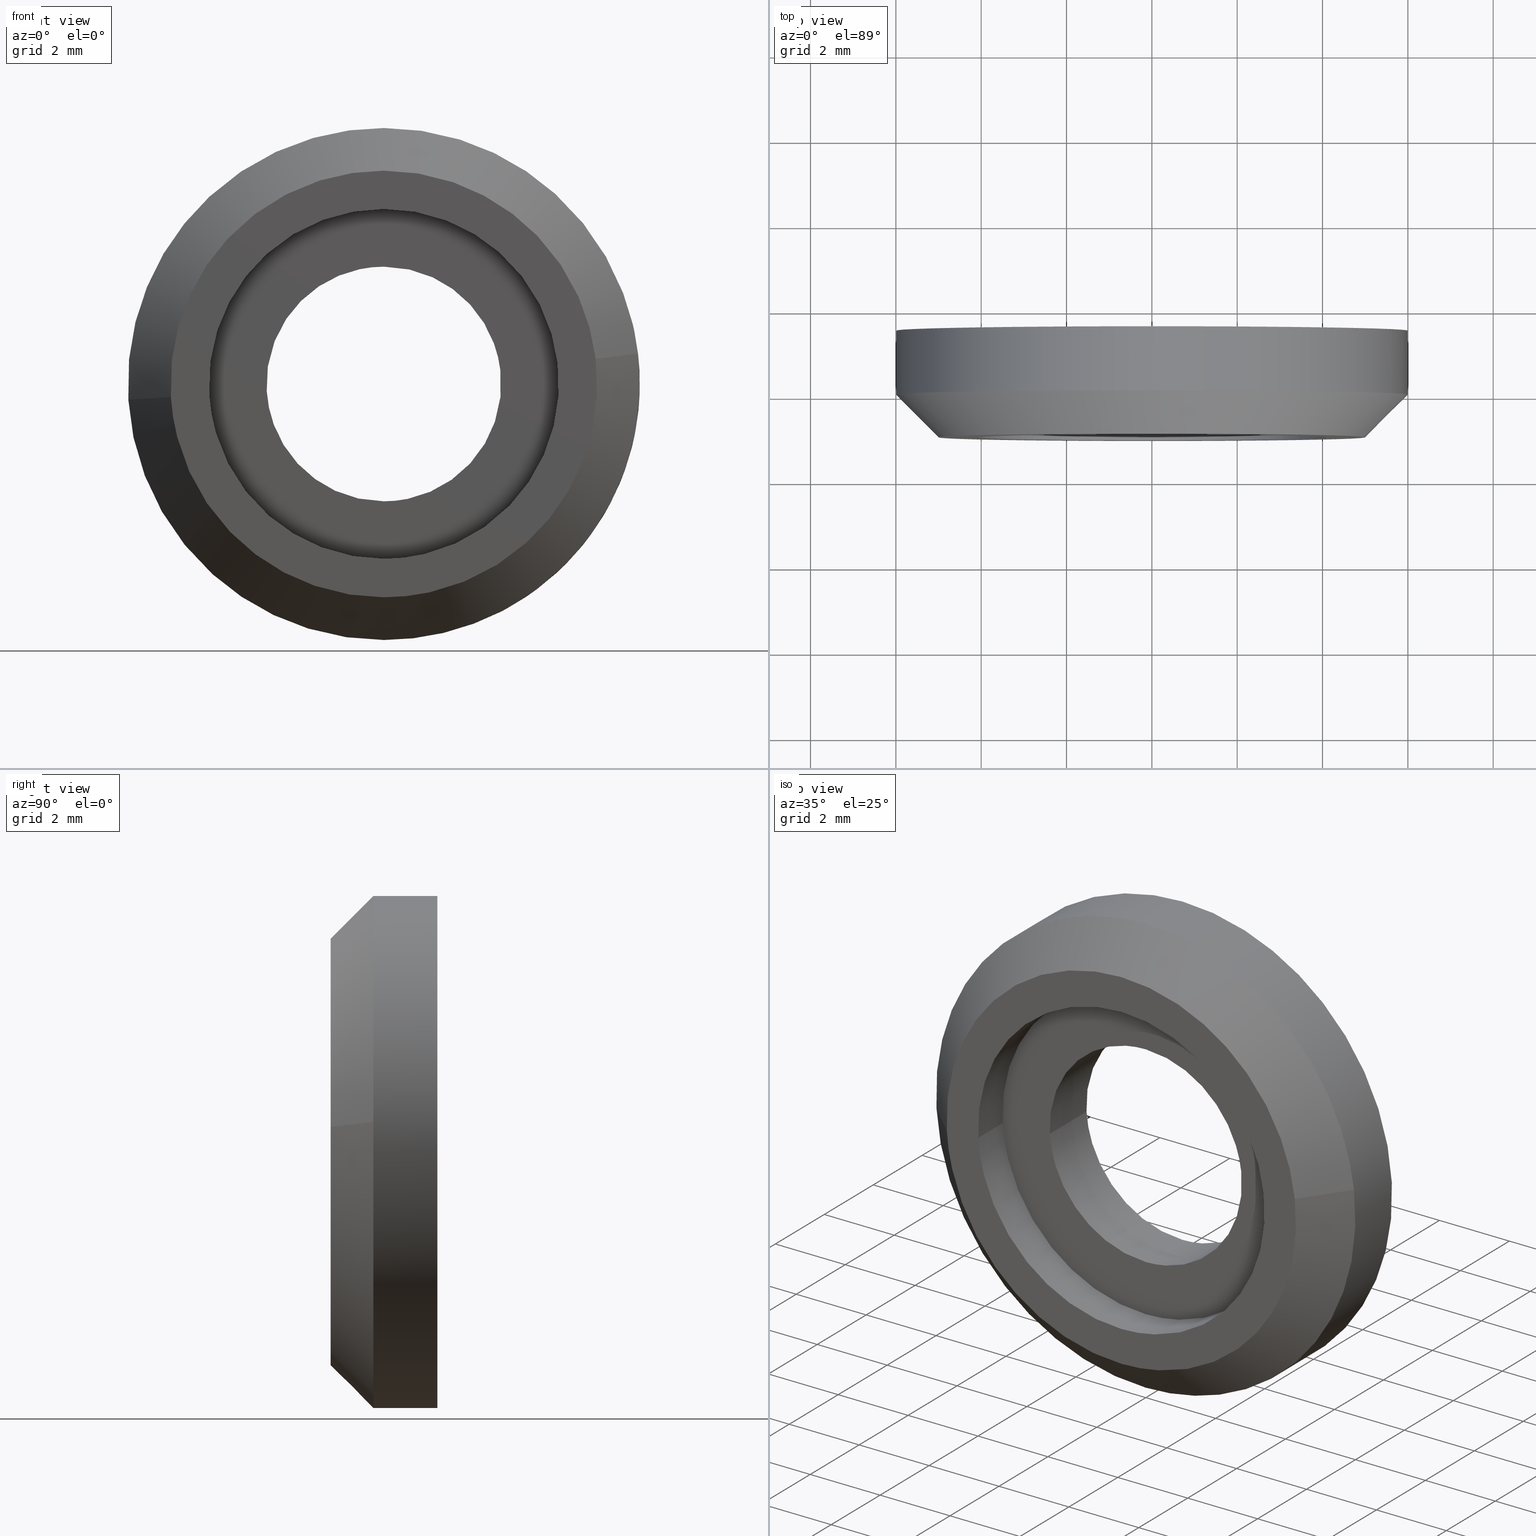
[diagram: canonical four-view strip — front | top / right | iso, engineering-drawing reading convention]
A machine part, canonical four-view strip (front | top / right | iso — engineering-drawing reading convention). The complete STEP part file that produces these views, byte-faithful:
ISO-10303-21;
HEADER;
/****************************************************************
 * Generated by software with PDE/Lib inside                    *
 * PDElib Version 4.4.1-0003, patched  Thursday August 19 11:58 *
 * International Technegroup Inc. (www.iti-oh.com)              *
 ****************************************************************/
FILE_DESCRIPTION((''),'2;1');
FILE_NAME('','2005-10-12T14:39:44',(''),(''),'','CADfix','');
FILE_SCHEMA(('AUTOMOTIVE_DESIGN'));
ENDSEC;
DATA;
#5=APPLICATION_CONTEXT('automotive design');
#6=APPLICATION_PROTOCOL_DEFINITION('Draft International Standard','automotive_design',1998,#5);
#7=PRODUCT_CONTEXT('None',#5,'mechanical');
#8=PRODUCT('facing ring','','None',(#7));
#9=PRODUCT_RELATED_PRODUCT_CATEGORY('part','description',(#8));
#10=PRODUCT_DEFINITION_FORMATION('None','None',#8);
#11=PRODUCT_DEFINITION_CONTEXT('part definition',#5,'design');
#12=PRODUCT_DEFINITION('None','None',#10,#11);
#18=(NAMED_UNIT(*)PLANE_ANGLE_UNIT()SI_UNIT($,.RADIAN.));
#19=DIMENSIONAL_EXPONENTS(0.0,0.0,0.0,0.0,0.0,0.0,0.0);
#20=PLANE_ANGLE_MEASURE_WITH_UNIT(PLANE_ANGLE_MEASURE(0.017453292500000),#18);
#24=(CONVERSION_BASED_UNIT('DEGREE',#20)NAMED_UNIT(#19)PLANE_ANGLE_UNIT());
#28=(NAMED_UNIT(*)SI_UNIT($,.STERADIAN.)SOLID_ANGLE_UNIT());
#32=(LENGTH_UNIT()NAMED_UNIT(*)SI_UNIT(.MILLI.,.METRE.));
#34=UNCERTAINTY_MEASURE_WITH_UNIT(LENGTH_MEASURE(0.001000000000000),#32,'DISTANCE_ACCURACY_VALUE','');
#36=(GEOMETRIC_REPRESENTATION_CONTEXT(3)GLOBAL_UNCERTAINTY_ASSIGNED_CONTEXT((#34))GLOBAL_UNIT_ASSIGNED_CONTEXT((#24,#28,#32))REPRESENTATION_CONTEXT('None','None'));
#37=AXIS2_PLACEMENT_3D('',#38,#39,#40);
#38=CARTESIAN_POINT('',(0.0,0.0,0.0));
#39=DIRECTION('',(0.0,0.0,1.0));
#40=DIRECTION('',(1.0,0.0,0.0));
#41=ADVANCED_BREP_SHAPE_REPRESENTATION('',(#37,#807),#36);
#42=PRODUCT_DEFINITION_SHAPE('','',#12);
#43=SHAPE_DEFINITION_REPRESENTATION(#42,#41);
#44=CARTESIAN_POINT('',(2.109707846349432,-0.037500000000000,-5.616861472659944));
#45=CARTESIAN_POINT('',(1.265936710292450,-0.037500000000000,-5.933784116190903));
#46=CARTESIAN_POINT('',(0.366291237209142,-0.037500000000000,-5.988808790531200));
#47=CARTESIAN_POINT('',(-5.622517553322059,-0.037500000000000,-6.355100027740342));
#48=CARTESIAN_POINT('',(-5.988808790531200,-0.037500000000000,-0.366291237209142));
#49=CARTESIAN_POINT('',(2.109707846349432,1.538437500000001,-5.616861472659944));
#50=CARTESIAN_POINT('',(1.265936710292450,1.538437500000000,-5.933784116190903));
#51=CARTESIAN_POINT('',(0.366291237209142,1.538437500000000,-5.988808790531200));
#52=CARTESIAN_POINT('',(-5.622517553322059,1.538437500000001,-6.355100027740342));
#53=CARTESIAN_POINT('',(-5.988808790531200,1.538437500000000,-0.366291237209142));
#61=(BOUNDED_SURFACE()B_SPLINE_SURFACE(2,1,((#44,#49),(#45,#50),(#46,#51),(#47,#52),(#48,#53)),.UNSPECIFIED.,.F.,.F.,.U.)B_SPLINE_SURFACE_WITH_KNOTS((3,2,3),(2,2),(0.0,1.988225099390856,11.929350596345140),(0.0,1.0),.UNSPECIFIED.)GEOMETRIC_REPRESENTATION_ITEM()RATIONAL_B_SPLINE_SURFACE(((0.906274169979695,0.906274169979695),(0.941421356237309,0.941421356237309),(1.0,1.0),(0.707106781186548,0.707106781186548),(1.0,1.0)))REPRESENTATION_ITEM('')SURFACE());
#62=CARTESIAN_POINT('',(2.109705219126436,1.517137E-014,-5.616862459450364));
#63=VERTEX_POINT('',#62);
#64=CARTESIAN_POINT('',(0.0,0.0,-6.0));
#65=VERTEX_POINT('',#64);
#66=CARTESIAN_POINT('',(2.109705219126437,1.517137E-014,-5.616862459450364));
#67=CARTESIAN_POINT('',(1.089642866905239,0.0,-6.000000000000001));
#68=CARTESIAN_POINT('',(0.0,0.0,-6.0));
#76=(BOUNDED_CURVE()B_SPLINE_CURVE(2,(#66,#67,#68),.UNSPECIFIED.,.F.,.U.)B_SPLINE_CURVE_WITH_KNOTS((3,3),(0.440284244778167,0.500000000000000),.UNSPECIFIED.)CURVE()GEOMETRIC_REPRESENTATION_ITEM()RATIONAL_B_SPLINE_CURVE((0.893499645046490,0.930038640956804,1.0))REPRESENTATION_ITEM(''));
#77=EDGE_CURVE('',#63,#65,#76,.T.);
#78=ORIENTED_EDGE('',*,*,#77,.T.);
#79=CARTESIAN_POINT('',(-5.988808790531301,3.377125E-013,-0.366291237210561));
#80=VERTEX_POINT('',#79);
#81=CARTESIAN_POINT('',(0.0,0.0,-6.0));
#82=CARTESIAN_POINT('',(-5.644236401428818,0.0,-6.000000000000001));
#83=CARTESIAN_POINT('',(-5.988808790531301,3.377125E-013,-0.366291237210561));
#91=(BOUNDED_CURVE()B_SPLINE_CURVE(2,(#81,#82,#83),.UNSPECIFIED.,.F.,.U.)B_SPLINE_CURVE_WITH_KNOTS((3,3),(0.500000000000000,0.739332962241805),.UNSPECIFIED.)CURVE()GEOMETRIC_REPRESENTATION_ITEM()RATIONAL_B_SPLINE_CURVE((1.0,0.719603993283357,0.976072041672852))REPRESENTATION_ITEM(''));
#92=EDGE_CURVE('',#65,#80,#91,.T.);
#93=ORIENTED_EDGE('',*,*,#92,.T.);
#94=CARTESIAN_POINT('',(-5.988808919991055,1.500000000000000,-0.366289120546966));
#95=VERTEX_POINT('',#94);
#96=CARTESIAN_POINT('',(-5.988808790531301,3.377125E-013,-0.366291237210561));
#97=CARTESIAN_POINT('',(-5.988808919991055,1.500000000000000,-0.366289120546966));
#98=QUASI_UNIFORM_CURVE('',1,(#96,#97),.UNSPECIFIED.,.F.,.U.);
#99=EDGE_CURVE('',#80,#95,#98,.T.);
#100=ORIENTED_EDGE('',*,*,#99,.T.);
#101=CARTESIAN_POINT('',(0.0,1.500000000000000,-6.0));
#102=VERTEX_POINT('',#101);
#103=CARTESIAN_POINT('',(0.0,1.500000000000000,-6.0));
#104=CARTESIAN_POINT('',(-5.644238400040059,1.500000000000001,-6.000000000000001));
#105=CARTESIAN_POINT('',(-5.988808919991055,1.500000000000000,-0.366289120546966));
#113=(BOUNDED_CURVE()B_SPLINE_CURVE(2,(#103,#104,#105),.UNSPECIFIED.,.F.,.U.)B_SPLINE_CURVE_WITH_KNOTS((3,3),(0.500000000000000,0.739333023226263),.UNSPECIFIED.)CURVE()GEOMETRIC_REPRESENTATION_ITEM()RATIONAL_B_SPLINE_CURVE((1.0,0.719603921835620,0.976072172374189))REPRESENTATION_ITEM(''));
#114=EDGE_CURVE('',#102,#95,#113,.T.);
#115=ORIENTED_EDGE('',*,*,#114,.F.);
#116=CARTESIAN_POINT('',(2.109705698970068,1.500000000000000,-5.616862279220308));
#117=VERTEX_POINT('',#116);
#118=CARTESIAN_POINT('',(2.109705698970068,1.500000000000000,-5.616862279220308));
#119=CARTESIAN_POINT('',(1.089643131645224,1.500000000000000,-6.0));
#120=CARTESIAN_POINT('',(0.0,1.500000000000000,-6.0));
#128=(BOUNDED_CURVE()B_SPLINE_CURVE(2,(#118,#119,#120),.UNSPECIFIED.,.F.,.U.)B_SPLINE_CURVE_WITH_KNOTS((3,3),(0.440284231284646,0.500000000000000),.UNSPECIFIED.)CURVE()GEOMETRIC_REPRESENTATION_ITEM()RATIONAL_B_SPLINE_CURVE((0.893499628533607,0.930038625148161,1.0))REPRESENTATION_ITEM(''));
#129=EDGE_CURVE('',#117,#102,#128,.T.);
#130=ORIENTED_EDGE('',*,*,#129,.F.);
#131=CARTESIAN_POINT('',(2.109705219126436,1.517137E-014,-5.616862459450364));
#132=CARTESIAN_POINT('',(2.109705698970068,1.500000000000000,-5.616862279220308));
#133=QUASI_UNIFORM_CURVE('',1,(#131,#132),.UNSPECIFIED.,.F.,.U.);
#134=EDGE_CURVE('',#63,#117,#133,.T.);
#135=ORIENTED_EDGE('',*,*,#134,.F.);
#136=EDGE_LOOP('',(#78,#93,#100,#115,#130,#135));
#137=FACE_OUTER_BOUND('',#136,.T.);
#138=ADVANCED_FACE('',(#137),#61,.T.);
#139=CARTESIAN_POINT('',(-5.988808790531200,-0.037500000000000,-0.366291237209142));
#140=CARTESIAN_POINT('',(-6.355100027740342,-0.037500000000000,5.622517553322059));
#141=CARTESIAN_POINT('',(-0.366291237209142,-0.037500000000000,5.988808790531200));
#142=CARTESIAN_POINT('',(5.622517553322059,-0.037500000000000,6.355100027740342));
#143=CARTESIAN_POINT('',(5.988808790531200,-0.037500000000000,0.366291237209142));
#144=CARTESIAN_POINT('',(6.259423337216051,-0.037500000000000,-4.058217490818392));
#145=CARTESIAN_POINT('',(2.109707846349432,-0.037500000000000,-5.616861472659944));
#146=CARTESIAN_POINT('',(-5.988808790531200,1.538437500000000,-0.366291237209142));
#147=CARTESIAN_POINT('',(-6.355100027740342,1.538437500000001,5.622517553322059));
#148=CARTESIAN_POINT('',(-0.366291237209142,1.538437500000000,5.988808790531200));
#149=CARTESIAN_POINT('',(5.622517553322059,1.538437500000001,6.355100027740342));
#150=CARTESIAN_POINT('',(5.988808790531200,1.538437500000000,0.366291237209142));
#151=CARTESIAN_POINT('',(6.259423337216051,1.538437500000001,-4.058217490818392));
#152=CARTESIAN_POINT('',(2.109707846349432,1.538437500000001,-5.616861472659944));
#160=(BOUNDED_SURFACE()B_SPLINE_SURFACE(2,1,((#139,#146),(#140,#147),(#141,#148),(#142,#149),(#143,#150),(#144,#151),(#145,#152)),.UNSPECIFIED.,.F.,.F.,.U.)B_SPLINE_SURFACE_WITH_KNOTS((3,2,2,3),(2,2),(0.0,9.941125496954278,19.882250993908560,27.835151391471982),(0.0,1.0),.UNSPECIFIED.)GEOMETRIC_REPRESENTATION_ITEM()RATIONAL_B_SPLINE_SURFACE(((1.0,1.0),(0.707106781186548,0.707106781186548),(1.0,1.0),(0.707106781186548,0.707106781186548),(1.0,1.0),(0.765685424949238,0.765685424949238),(0.906274169979695,0.906274169979695)))REPRESENTATION_ITEM('')SURFACE());
#161=CARTESIAN_POINT('',(5.958057158182076,1.184327E-012,0.708205407949929));
#162=VERTEX_POINT('',#161);
#163=CARTESIAN_POINT('',(5.958057158182077,1.184327E-012,0.708205407949929));
#164=CARTESIAN_POINT('',(6.000000000000001,0.0,0.355344717920797));
#165=CARTESIAN_POINT('',(6.0,0.0,0.0));
#166=CARTESIAN_POINT('',(6.0,0.0,-4.155659650516266));
#167=CARTESIAN_POINT('',(2.109705219126437,1.517137E-014,-5.616862459450364));
#175=(BOUNDED_CURVE()B_SPLINE_CURVE(2,(#163,#164,#165,#166,#167),.UNSPECIFIED.,.F.,.U.)B_SPLINE_CURVE_WITH_KNOTS((3,2,3),(0.229562473515120,0.250000000000000,0.440284244778167),.UNSPECIFIED.)CURVE()GEOMETRIC_REPRESENTATION_ITEM()RATIONAL_B_SPLINE_CURVE((0.956026754186858,0.976055948333033,1.0,0.777068140229744,0.893499645046490))REPRESENTATION_ITEM(''));
#176=EDGE_CURVE('',#162,#63,#175,.T.);
#177=ORIENTED_EDGE('',*,*,#176,.T.);
#178=ORIENTED_EDGE('',*,*,#134,.T.);
#179=CARTESIAN_POINT('',(0.0,1.500000000000000,6.0));
#180=VERTEX_POINT('',#179);
#181=CARTESIAN_POINT('',(0.0,1.500000000000000,6.0));
#182=CARTESIAN_POINT('',(6.0,1.500000000000000,6.0));
#183=CARTESIAN_POINT('',(6.0,1.500000000000000,0.0));
#184=CARTESIAN_POINT('',(6.0,1.500000000000000,-4.155659271285729));
#185=CARTESIAN_POINT('',(2.109705698970068,1.500000000000000,-5.616862279220308));
#193=(BOUNDED_CURVE()B_SPLINE_CURVE(2,(#181,#182,#183,#184,#185),.UNSPECIFIED.,.F.,.U.)B_SPLINE_CURVE_WITH_KNOTS((3,2,3),(0.0,0.250000000000000,0.440284231284646),.UNSPECIFIED.)CURVE()GEOMETRIC_REPRESENTATION_ITEM()RATIONAL_B_SPLINE_CURVE((1.0,0.707106781186548,1.0,0.777068156038386,0.893499628533607))REPRESENTATION_ITEM(''));
#194=EDGE_CURVE('',#180,#117,#193,.T.);
#195=ORIENTED_EDGE('',*,*,#194,.F.);
#196=CARTESIAN_POINT('',(-5.988808919991055,1.500000000000000,-0.366289120546966));
#197=CARTESIAN_POINT('',(-6.0,1.500000000000000,-0.183315518493018));
#198=CARTESIAN_POINT('',(-6.0,1.500000000000000,0.0));
#199=CARTESIAN_POINT('',(-6.0,1.500000000000000,6.0));
#200=CARTESIAN_POINT('',(0.0,1.500000000000000,6.0));
#208=(BOUNDED_CURVE()B_SPLINE_CURVE(2,(#196,#197,#198,#199,#200),.UNSPECIFIED.,.F.,.U.)B_SPLINE_CURVE_WITH_KNOTS((3,2,3),(0.739333023226263,0.750000000000000,1.0),.UNSPECIFIED.)CURVE()GEOMETRIC_REPRESENTATION_ITEM()RATIONAL_B_SPLINE_CURVE((0.976072172374189,0.987502859350927,1.0,0.707106781186548,1.0))REPRESENTATION_ITEM(''));
#209=EDGE_CURVE('',#95,#180,#208,.T.);
#210=ORIENTED_EDGE('',*,*,#209,.F.);
#211=ORIENTED_EDGE('',*,*,#99,.F.);
#212=CARTESIAN_POINT('',(0.0,0.0,6.0));
#213=VERTEX_POINT('',#212);
#214=CARTESIAN_POINT('',(-5.988808790531301,3.377125E-013,-0.366291237210561));
#215=CARTESIAN_POINT('',(-6.0,0.0,-0.183316579794358));
#216=CARTESIAN_POINT('',(-6.0,0.0,0.0));
#217=CARTESIAN_POINT('',(-6.0,0.0,6.0));
#218=CARTESIAN_POINT('',(0.0,0.0,6.0));
#226=(BOUNDED_CURVE()B_SPLINE_CURVE(2,(#214,#215,#216,#217,#218),.UNSPECIFIED.,.F.,.U.)B_SPLINE_CURVE_WITH_KNOTS((3,2,3),(0.739332962241806,0.750000000000000,1.0),.UNSPECIFIED.)CURVE()GEOMETRIC_REPRESENTATION_ITEM()RATIONAL_B_SPLINE_CURVE((0.976072041672854,0.987502787903192,1.0,0.707106781186548,1.0))REPRESENTATION_ITEM(''));
#227=EDGE_CURVE('',#80,#213,#226,.T.);
#228=ORIENTED_EDGE('',*,*,#227,.T.);
#229=CARTESIAN_POINT('',(0.0,0.0,6.0));
#230=CARTESIAN_POINT('',(5.329047155691565,0.0,6.000000000000001));
#231=CARTESIAN_POINT('',(5.958057158182076,1.184327E-012,0.708205407949929));
#239=(BOUNDED_CURVE()B_SPLINE_CURVE(2,(#229,#230,#231),.UNSPECIFIED.,.F.,.U.)B_SPLINE_CURVE_WITH_KNOTS((3,3),(0.0,0.229562473515120),.UNSPECIFIED.)CURVE()GEOMETRIC_REPRESENTATION_ITEM()RATIONAL_B_SPLINE_CURVE((1.0,0.731050832853514,0.956026754186859))REPRESENTATION_ITEM(''));
#240=EDGE_CURVE('',#213,#162,#239,.T.);
#241=ORIENTED_EDGE('',*,*,#240,.T.);
#242=EDGE_LOOP('',(#177,#178,#195,#210,#211,#228,#241));
#243=FACE_OUTER_BOUND('',#242,.T.);
#244=ADVANCED_FACE('',(#243),#160,.T.);
#245=CARTESIAN_POINT('',(2.725959585049179,-0.037500000000000,0.365115796185246));
#246=CARTESIAN_POINT('',(2.728374681257778,-0.037500000000000,0.344797847335927));
#247=CARTESIAN_POINT('',(2.740065942483665,-0.037500000000000,0.246440503754439));
#248=CARTESIAN_POINT('',(2.744870695660134,-0.037500000000000,0.167883483720857));
#249=CARTESIAN_POINT('',(2.912754179380990,-0.037500000000000,-2.576987211939278));
#250=CARTESIAN_POINT('',(0.167883483720857,-0.037500000000000,-2.744870695660134));
#251=CARTESIAN_POINT('',(-2.576987211939278,-0.037500000000000,-2.912754179380990));
#252=CARTESIAN_POINT('',(-2.746078075068390,-0.037500000000000,-0.148143004891067));
#253=CARTESIAN_POINT('',(-2.747278282447295,-0.037500000000000,-0.128519787704589));
#254=CARTESIAN_POINT('',(2.725959585049179,1.538437500000000,0.365115796185246));
#255=CARTESIAN_POINT('',(2.728374681257778,1.538437500000001,0.344797847335927));
#256=CARTESIAN_POINT('',(2.740065942483665,1.538437500000001,0.246440503754439));
#257=CARTESIAN_POINT('',(2.744870695660134,1.538437500000000,0.167883483720857));
#258=CARTESIAN_POINT('',(2.912754179380990,1.538437500000001,-2.576987211939278));
#259=CARTESIAN_POINT('',(0.167883483720857,1.538437500000000,-2.744870695660134));
#260=CARTESIAN_POINT('',(-2.576987211939278,1.538437500000001,-2.912754179380990));
#261=CARTESIAN_POINT('',(-2.746078075068390,1.538437500000001,-0.148143004891067));
#262=CARTESIAN_POINT('',(-2.747278282447295,1.538437500000000,-0.128519787704589));
#270=(BOUNDED_SURFACE()B_SPLINE_SURFACE(2,1,((#245,#254),(#246,#255),(#247,#256),(#248,#257),(#249,#258),(#250,#259),(#251,#260),(#252,#261),(#253,#262)),.UNSPECIFIED.,.F.,.F.,.U.)B_SPLINE_SURFACE_WITH_KNOTS((3,1,2,2,1,3),(2,2),(0.0,0.046470084180643,0.228724051624805,4.785073237728851,9.341422423832897,9.387902138452885),(0.0,1.0),.UNSPECIFIED.)GEOMETRIC_REPRESENTATION_ITEM()RATIONAL_B_SPLINE_SURFACE(((0.972009334119722,0.972009334119722),(0.974757567457424,0.974757567457424),(0.988284271247462,0.988284271247462),(1.0,1.0),(0.707106781186548,0.707106781186548),(1.0,1.0),(0.707106781186548,0.707106781186548),(1.002987829217764,1.002987829217764),(1.005975658435529,1.005975658435529)))REPRESENTATION_ITEM('')SURFACE());
#271=CARTESIAN_POINT('',(2.730776685649423,1.500000000000011,0.324590038504644));
#272=VERTEX_POINT('',#271);
#273=CARTESIAN_POINT('',(0.0,1.500000000000000,-2.750000000000000));
#274=VERTEX_POINT('',#273);
#275=CARTESIAN_POINT('',(2.730776685649423,1.500000000000012,0.324590038504644));
#276=CARTESIAN_POINT('',(2.750000000000000,1.500000000000000,0.162864253934205));
#277=CARTESIAN_POINT('',(2.750000000000000,1.500000000000000,0.0));
#278=CARTESIAN_POINT('',(2.750000000000000,1.500000000000000,-2.750000000000000));
#279=CARTESIAN_POINT('',(0.0,1.500000000000000,-2.750000000000000));
#287=(BOUNDED_CURVE()B_SPLINE_CURVE(2,(#275,#276,#277,#278,#279),.UNSPECIFIED.,.F.,.U.)B_SPLINE_CURVE_WITH_KNOTS((3,2,3),(0.229562727678856,0.250000000000000,0.500000000000000),.UNSPECIFIED.)CURVE()GEOMETRIC_REPRESENTATION_ITEM()RATIONAL_B_SPLINE_CURVE((0.956027252358787,0.976056246104372,1.0,0.707106781186548,1.0))REPRESENTATION_ITEM(''));
#288=EDGE_CURVE('',#272,#274,#287,.T.);
#289=ORIENTED_EDGE('',*,*,#288,.T.);
#290=CARTESIAN_POINT('',(-2.744870953723958,1.500000000000022,-0.167879264308188));
#291=VERTEX_POINT('',#290);
#292=CARTESIAN_POINT('',(0.0,1.500000000000000,-2.750000000000000));
#293=CARTESIAN_POINT('',(-2.586945668068611,1.500000000000000,-2.750000000000000));
#294=CARTESIAN_POINT('',(-2.744870953723959,1.500000000000022,-0.167879264308188));
#302=(BOUNDED_CURVE()B_SPLINE_CURVE(2,(#292,#293,#294),.UNSPECIFIED.,.F.,.U.)B_SPLINE_CURVE_WITH_KNOTS((3,3),(0.500000000000000,0.739333227480785),.UNSPECIFIED.)CURVE()GEOMETRIC_REPRESENTATION_ITEM()RATIONAL_B_SPLINE_CURVE((1.0,0.719603682536563,0.976072610131135))REPRESENTATION_ITEM(''));
#303=EDGE_CURVE('',#274,#291,#302,.T.);
#304=ORIENTED_EDGE('',*,*,#303,.T.);
#305=CARTESIAN_POINT('',(-2.744870950539090,3.469447E-017,-0.167879316382936));
#306=VERTEX_POINT('',#305);
#307=CARTESIAN_POINT('',(-2.744870950539090,3.469447E-017,-0.167879316382936));
#308=CARTESIAN_POINT('',(-2.744870953723958,1.500000000000022,-0.167879264308188));
#309=QUASI_UNIFORM_CURVE('',1,(#307,#308),.UNSPECIFIED.,.F.,.U.);
#310=EDGE_CURVE('',#306,#291,#309,.T.);
#311=ORIENTED_EDGE('',*,*,#310,.F.);
#312=CARTESIAN_POINT('',(0.0,0.0,-2.750000000000000));
#313=VERTEX_POINT('',#312);
#314=CARTESIAN_POINT('',(0.0,0.0,-2.750000000000000));
#315=CARTESIAN_POINT('',(-2.586945618898264,0.0,-2.750000000000000));
#316=CARTESIAN_POINT('',(-2.744870950539089,3.469447E-017,-0.167879316382936));
#324=(BOUNDED_CURVE()B_SPLINE_CURVE(2,(#314,#315,#316),.UNSPECIFIED.,.F.,.U.)B_SPLINE_CURVE_WITH_KNOTS((3,3),(0.500000000000000,0.739333224207285),.UNSPECIFIED.)CURVE()GEOMETRIC_REPRESENTATION_ITEM()RATIONAL_B_SPLINE_CURVE((1.0,0.719603686371707,0.976072603115385))REPRESENTATION_ITEM(''));
#325=EDGE_CURVE('',#313,#306,#324,.T.);
#326=ORIENTED_EDGE('',*,*,#325,.F.);
#327=CARTESIAN_POINT('',(2.730776679625815,3.194357E-017,0.324590089181917));
#328=VERTEX_POINT('',#327);
#329=CARTESIAN_POINT('',(2.730776679625815,3.194357E-017,0.324590089181916));
#330=CARTESIAN_POINT('',(2.750000000000000,0.0,0.162864279540707));
#331=CARTESIAN_POINT('',(2.750000000000000,0.0,0.0));
#332=CARTESIAN_POINT('',(2.750000000000000,0.0,-2.750000000000000));
#333=CARTESIAN_POINT('',(0.0,0.0,-2.750000000000000));
#341=(BOUNDED_CURVE()B_SPLINE_CURVE(2,(#329,#330,#331,#332,#333),.UNSPECIFIED.,.F.,.U.)B_SPLINE_CURVE_WITH_KNOTS((3,2,3),(0.229562724542522,0.250000000000000,0.500000000000000),.UNSPECIFIED.)CURVE()GEOMETRIC_REPRESENTATION_ITEM()RATIONAL_B_SPLINE_CURVE((0.956027246211430,0.976056242429929,1.0,0.707106781186548,1.0))REPRESENTATION_ITEM(''));
#342=EDGE_CURVE('',#328,#313,#341,.T.);
#343=ORIENTED_EDGE('',*,*,#342,.F.);
#344=CARTESIAN_POINT('',(2.730776679625815,3.194357E-017,0.324590089181917));
#345=CARTESIAN_POINT('',(2.730776685649423,1.500000000000011,0.324590038504644));
#346=QUASI_UNIFORM_CURVE('',1,(#344,#345),.UNSPECIFIED.,.F.,.U.);
#347=EDGE_CURVE('',#328,#272,#346,.T.);
#348=ORIENTED_EDGE('',*,*,#347,.T.);
#349=EDGE_LOOP('',(#289,#304,#311,#326,#343,#348));
#350=FACE_OUTER_BOUND('',#349,.T.);
#351=ADVANCED_FACE('',(#350),#270,.F.);
#352=CARTESIAN_POINT('',(-2.742557482287090,-0.037500000000000,-0.205704188055494));
#353=CARTESIAN_POINT('',(-2.743710778967167,-0.037500000000000,-0.186847954015175));
#354=CARTESIAN_POINT('',(-2.912754179380990,-0.037500000000000,2.576987211939278));
#355=CARTESIAN_POINT('',(-0.167883483720857,-0.037500000000000,2.744870695660134));
#356=CARTESIAN_POINT('',(2.424244599808628,-0.037500000000000,2.903412041014450));
#357=CARTESIAN_POINT('',(2.733071324263455,-0.037500000000000,0.305285486704895));
#358=CARTESIAN_POINT('',(2.735354115827338,-0.037500000000000,0.286080602831752));
#359=CARTESIAN_POINT('',(-2.742557482287090,1.538437500000000,-0.205704188055494));
#360=CARTESIAN_POINT('',(-2.743710778967167,1.538437500000001,-0.186847954015175));
#361=CARTESIAN_POINT('',(-2.912754179380990,1.538437500000001,2.576987211939278));
#362=CARTESIAN_POINT('',(-0.167883483720857,1.538437500000000,2.744870695660134));
#363=CARTESIAN_POINT('',(2.424244599808628,1.538437500000000,2.903412041014450));
#364=CARTESIAN_POINT('',(2.733071324263455,1.538437500000001,0.305285486704895));
#365=CARTESIAN_POINT('',(2.735354115827338,1.538437500000000,0.286080602831752));
#373=(BOUNDED_SURFACE()B_SPLINE_SURFACE(2,1,((#352,#359),(#353,#360),(#354,#361),(#355,#362),(#356,#363),(#357,#364),(#358,#365)),.UNSPECIFIED.,.F.,.F.,.U.)B_SPLINE_SURFACE_WITH_KNOTS((3,1,2,1,3),(2,2),(0.0,0.044647328788295,4.600996514892342,8.975091733552226,9.019748690098576),(0.0,1.0),.UNSPECIFIED.)GEOMETRIC_REPRESENTATION_ITEM()RATIONAL_B_SPLINE_SURFACE(((1.005740077990558,1.005740077990558),(1.002870038995279,1.002870038995279),(0.707106781186548,0.707106781186548),(1.0,1.0),(0.718822509939086,0.718822509939086),(0.980146806054853,0.980146806054853),(0.982787811314580,0.982787811314580)))REPRESENTATION_ITEM('')SURFACE());
#374=CARTESIAN_POINT('',(0.0,1.500000000000000,2.750000000000000));
#375=VERTEX_POINT('',#374);
#376=CARTESIAN_POINT('',(0.0,1.500000000000000,2.750000000000000));
#377=CARTESIAN_POINT('',(2.442483645460547,1.500000000000001,2.750000000000000));
#378=CARTESIAN_POINT('',(2.730776685649423,1.500000000000012,0.324590038504644));
#386=(BOUNDED_CURVE()B_SPLINE_CURVE(2,(#376,#377,#378),.UNSPECIFIED.,.F.,.U.)B_SPLINE_CURVE_WITH_KNOTS((3,3),(0.0,0.229562727678856),.UNSPECIFIED.)CURVE()GEOMETRIC_REPRESENTATION_ITEM()RATIONAL_B_SPLINE_CURVE((1.0,0.731050535082176,0.956027252358787))REPRESENTATION_ITEM(''));
#387=EDGE_CURVE('',#375,#272,#386,.T.);
#388=ORIENTED_EDGE('',*,*,#387,.T.);
#389=ORIENTED_EDGE('',*,*,#347,.F.);
#390=CARTESIAN_POINT('',(0.0,0.0,2.750000000000000));
#391=VERTEX_POINT('',#390);
#392=CARTESIAN_POINT('',(0.0,0.0,2.750000000000000));
#393=CARTESIAN_POINT('',(2.442483599814294,0.0,2.750000000000000));
#394=CARTESIAN_POINT('',(2.730776679625815,3.194357E-017,0.324590089181916));
#402=(BOUNDED_CURVE()B_SPLINE_CURVE(2,(#392,#393,#394),.UNSPECIFIED.,.F.,.U.)B_SPLINE_CURVE_WITH_KNOTS((3,3),(0.0,0.229562724542522),.UNSPECIFIED.)CURVE()GEOMETRIC_REPRESENTATION_ITEM()RATIONAL_B_SPLINE_CURVE((1.0,0.731050538756619,0.956027246211430))REPRESENTATION_ITEM(''));
#403=EDGE_CURVE('',#391,#328,#402,.T.);
#404=ORIENTED_EDGE('',*,*,#403,.F.);
#405=CARTESIAN_POINT('',(-2.744870950539089,3.469447E-017,-0.167879316382936));
#406=CARTESIAN_POINT('',(-2.750000000000000,0.0,-0.084018009559996));
#407=CARTESIAN_POINT('',(-2.750000000000000,0.0,0.0));
#408=CARTESIAN_POINT('',(-2.750000000000000,0.0,2.750000000000000));
#409=CARTESIAN_POINT('',(0.0,0.0,2.750000000000000));
#417=(BOUNDED_CURVE()B_SPLINE_CURVE(2,(#405,#406,#407,#408,#409),.UNSPECIFIED.,.F.,.U.)B_SPLINE_CURVE_WITH_KNOTS((3,2,3),(0.739333224207285,0.750000000000000,1.0),.UNSPECIFIED.)CURVE()GEOMETRIC_REPRESENTATION_ITEM()RATIONAL_B_SPLINE_CURVE((0.976072603115385,0.987503094814841,1.0,0.707106781186548,1.0))REPRESENTATION_ITEM(''));
#418=EDGE_CURVE('',#306,#391,#417,.T.);
#419=ORIENTED_EDGE('',*,*,#418,.F.);
#420=ORIENTED_EDGE('',*,*,#310,.T.);
#421=CARTESIAN_POINT('',(-2.744870953723959,1.500000000000022,-0.167879264308188));
#422=CARTESIAN_POINT('',(-2.750000000000000,1.500000000000000,-0.084017983449622));
#423=CARTESIAN_POINT('',(-2.750000000000000,1.500000000000000,0.0));
#424=CARTESIAN_POINT('',(-2.750000000000000,1.500000000000000,2.750000000000000));
#425=CARTESIAN_POINT('',(0.0,1.500000000000000,2.750000000000000));
#433=(BOUNDED_CURVE()B_SPLINE_CURVE(2,(#421,#422,#423,#424,#425),.UNSPECIFIED.,.F.,.U.)B_SPLINE_CURVE_WITH_KNOTS((3,2,3),(0.739333227480785,0.750000000000000,1.0),.UNSPECIFIED.)CURVE()GEOMETRIC_REPRESENTATION_ITEM()RATIONAL_B_SPLINE_CURVE((0.976072610131135,0.987503098649985,1.0,0.707106781186548,1.0))REPRESENTATION_ITEM(''));
#434=EDGE_CURVE('',#291,#375,#433,.T.);
#435=ORIENTED_EDGE('',*,*,#434,.T.);
#436=EDGE_LOOP('',(#388,#389,#404,#419,#420,#435));
#437=FACE_OUTER_BOUND('',#436,.T.);
#438=ADVANCED_FACE('',(#437),#373,.F.);
#439=CARTESIAN_POINT('',(4.071339058091032,-1.025000000000000,0.483940362092710));
#440=CARTESIAN_POINT('',(4.085189223339283,-1.025000000000000,0.367420387415709));
#441=CARTESIAN_POINT('',(4.092352673529653,-1.025000000000000,0.250299012092914));
#442=CARTESIAN_POINT('',(4.342651685622566,-1.025000000000000,-3.842053661436740));
#443=CARTESIAN_POINT('',(0.250299012092914,-1.025000000000000,-4.092352673529653));
#444=CARTESIAN_POINT('',(-3.842053661436740,-1.025000000000000,-4.342651685622566));
#445=CARTESIAN_POINT('',(-4.092352673529653,-1.025000000000000,-0.250299012092914));
#446=CARTESIAN_POINT('',(4.071339058091032,0.025625000000000,0.483940362092710));
#447=CARTESIAN_POINT('',(4.085189223339283,0.025625000000000,0.367420387415709));
#448=CARTESIAN_POINT('',(4.092352673529653,0.025625000000000,0.250299012092914));
#449=CARTESIAN_POINT('',(4.342651685622566,0.025625000000000,-3.842053661436740));
#450=CARTESIAN_POINT('',(0.250299012092914,0.025625000000000,-4.092352673529653));
#451=CARTESIAN_POINT('',(-3.842053661436740,0.025625000000000,-4.342651685622566));
#452=CARTESIAN_POINT('',(-4.092352673529653,0.025625000000000,-0.250299012092914));
#460=(BOUNDED_SURFACE()B_SPLINE_SURFACE(2,1,((#439,#446),(#440,#447),(#441,#448),(#442,#449),(#443,#450),(#444,#451),(#445,#452)),.UNSPECIFIED.,.F.,.F.,.U.)B_SPLINE_SURFACE_WITH_KNOTS((3,2,2,3),(2,2),(0.0,0.271724096916751,7.064826519835508,13.857928942754270),(0.0,1.0),.UNSPECIFIED.)GEOMETRIC_REPRESENTATION_ITEM()RATIONAL_B_SPLINE_SURFACE(((0.977505800795127,0.977505800795127),(0.988284271247462,0.988284271247462),(1.0,1.0),(0.707106781186548,0.707106781186548),(1.0,1.0),(0.707106781186548,0.707106781186548),(1.0,1.0)))REPRESENTATION_ITEM('')SURFACE());
#461=CARTESIAN_POINT('',(4.071339481019626,4.606795E-014,0.483936804012672));
#462=VERTEX_POINT('',#461);
#463=CARTESIAN_POINT('',(0.0,0.0,-4.100000000000001));
#464=VERTEX_POINT('',#463);
#465=CARTESIAN_POINT('',(4.071339481019626,4.606795E-014,0.483936804012673));
#466=CARTESIAN_POINT('',(4.100000000000001,0.0,0.242817092725262));
#467=CARTESIAN_POINT('',(4.100000000000001,0.0,0.0));
#468=CARTESIAN_POINT('',(4.100000000000001,0.0,-4.100000000000001));
#469=CARTESIAN_POINT('',(0.0,0.0,-4.100000000000001));
#477=(BOUNDED_CURVE()B_SPLINE_CURVE(2,(#465,#466,#467,#468,#469),.UNSPECIFIED.,.F.,.U.)B_SPLINE_CURVE_WITH_KNOTS((3,2,3),(0.229562621213272,0.250000000000000,0.500000000000000),.UNSPECIFIED.)CURVE()GEOMETRIC_REPRESENTATION_ITEM()RATIONAL_B_SPLINE_CURVE((0.956027043681484,0.976056121372181,1.0,0.707106781186547,1.0))REPRESENTATION_ITEM(''));
#478=EDGE_CURVE('',#462,#464,#477,.T.);
#479=ORIENTED_EDGE('',*,*,#478,.T.);
#480=CARTESIAN_POINT('',(-4.092352866307658,-4.467954E-014,-0.250295860160577));
#481=VERTEX_POINT('',#480);
#482=CARTESIAN_POINT('',(0.0,0.0,-4.100000000000001));
#483=CARTESIAN_POINT('',(-3.856897850447983,0.0,-4.100000000000000));
#484=CARTESIAN_POINT('',(-4.092352866307658,-4.467954E-014,-0.250295860160578));
#492=(BOUNDED_CURVE()B_SPLINE_CURVE(2,(#482,#483,#484),.UNSPECIFIED.,.F.,.U.)B_SPLINE_CURVE_WITH_KNOTS((3,3),(0.500000000000000,0.739333095137616),.UNSPECIFIED.)CURVE()GEOMETRIC_REPRESENTATION_ITEM()RATIONAL_B_SPLINE_CURVE((1.0,0.719603837586229,0.976072326494038))REPRESENTATION_ITEM(''));
#493=EDGE_CURVE('',#464,#481,#492,.T.);
#494=ORIENTED_EDGE('',*,*,#493,.T.);
#495=CARTESIAN_POINT('',(-4.092352863930728,-1.0,-0.250295899024020));
#496=VERTEX_POINT('',#495);
#497=CARTESIAN_POINT('',(-4.092352863930728,-1.0,-0.250295899024020));
#498=CARTESIAN_POINT('',(-4.092352866307658,-4.467954E-014,-0.250295860160577));
#499=QUASI_UNIFORM_CURVE('',1,(#497,#498),.UNSPECIFIED.,.F.,.U.);
#500=EDGE_CURVE('',#496,#481,#499,.T.);
#501=ORIENTED_EDGE('',*,*,#500,.F.);
#502=CARTESIAN_POINT('',(0.0,-1.0,-4.100000000000001));
#503=VERTEX_POINT('',#502);
#504=CARTESIAN_POINT('',(0.0,-1.0,-4.100000000000001));
#505=CARTESIAN_POINT('',(-3.856897813752122,-1.0,-4.100000000000001));
#506=CARTESIAN_POINT('',(-4.092352863930728,-1.0,-0.250295899024020));
#514=(BOUNDED_CURVE()B_SPLINE_CURVE(2,(#504,#505,#506),.UNSPECIFIED.,.F.,.U.)B_SPLINE_CURVE_WITH_KNOTS((3,3),(0.500000000000000,0.739333093499008),.UNSPECIFIED.)CURVE()GEOMETRIC_REPRESENTATION_ITEM()RATIONAL_B_SPLINE_CURVE((1.0,0.719603839505978,0.976072322982185))REPRESENTATION_ITEM(''));
#515=EDGE_CURVE('',#503,#496,#514,.T.);
#516=ORIENTED_EDGE('',*,*,#515,.F.);
#517=CARTESIAN_POINT('',(4.071339475799119,-1.0,0.483936847932902));
#518=VERTEX_POINT('',#517);
#519=CARTESIAN_POINT('',(4.071339475799119,-1.0,0.483936847932902));
#520=CARTESIAN_POINT('',(4.100000000000000,-1.0,0.242817114917531));
#521=CARTESIAN_POINT('',(4.100000000000001,-1.0,0.0));
#522=CARTESIAN_POINT('',(4.100000000000001,-1.0,-4.100000000000001));
#523=CARTESIAN_POINT('',(0.0,-1.0,-4.100000000000001));
#531=(BOUNDED_CURVE()B_SPLINE_CURVE(2,(#519,#520,#521,#522,#523),.UNSPECIFIED.,.F.,.U.)B_SPLINE_CURVE_WITH_KNOTS((3,2,3),(0.229562619390121,0.250000000000000,0.500000000000000),.UNSPECIFIED.)CURVE()GEOMETRIC_REPRESENTATION_ITEM()RATIONAL_B_SPLINE_CURVE((0.956027040108030,0.976056119236228,1.0,0.707106781186547,1.0))REPRESENTATION_ITEM(''));
#532=EDGE_CURVE('',#518,#503,#531,.T.);
#533=ORIENTED_EDGE('',*,*,#532,.F.);
#534=CARTESIAN_POINT('',(4.071339475799119,-1.0,0.483936847932902));
#535=CARTESIAN_POINT('',(4.071339481019626,4.606795E-014,0.483936804012672));
#536=QUASI_UNIFORM_CURVE('',1,(#534,#535),.UNSPECIFIED.,.F.,.U.);
#537=EDGE_CURVE('',#518,#462,#536,.T.);
#538=ORIENTED_EDGE('',*,*,#537,.T.);
#539=EDGE_LOOP('',(#479,#494,#501,#516,#533,#538));
#540=FACE_OUTER_BOUND('',#539,.T.);
#541=ADVANCED_FACE('',(#540),#460,.F.);
#542=CARTESIAN_POINT('',(-4.092352673529653,-1.025000000000000,-0.250299012092914));
#543=CARTESIAN_POINT('',(-4.342651685622566,-1.025000000000000,3.842053661436740));
#544=CARTESIAN_POINT('',(-0.250299012092914,-1.025000000000000,4.092352673529653));
#545=CARTESIAN_POINT('',(3.614328312441953,-1.025000000000000,4.328723406603362));
#546=CARTESIAN_POINT('',(4.071339058091032,-1.025000000000000,0.483940362092710));
#547=CARTESIAN_POINT('',(-4.092352673529653,0.025625000000000,-0.250299012092914));
#548=CARTESIAN_POINT('',(-4.342651685622566,0.025625000000000,3.842053661436740));
#549=CARTESIAN_POINT('',(-0.250299012092914,0.025625000000000,4.092352673529653));
#550=CARTESIAN_POINT('',(3.614328312441953,0.025625000000000,4.328723406603362));
#551=CARTESIAN_POINT('',(4.071339058091032,0.025625000000000,0.483940362092710));
#559=(BOUNDED_SURFACE()B_SPLINE_SURFACE(2,1,((#542,#547),(#543,#548),(#544,#549),(#545,#550),(#546,#551)),.UNSPECIFIED.,.F.,.F.,.U.)B_SPLINE_SURFACE_WITH_KNOTS((3,2,3),(2,2),(0.0,6.793102422918757,13.314480748920760),(0.0,1.0),.UNSPECIFIED.)GEOMETRIC_REPRESENTATION_ITEM()RATIONAL_B_SPLINE_SURFACE(((1.0,1.0),(0.707106781186548,0.707106781186548),(1.0,1.0),(0.718822509939086,0.718822509939086),(0.977505800795127,0.977505800795127)))REPRESENTATION_ITEM('')SURFACE());
#560=CARTESIAN_POINT('',(0.0,0.0,4.100000000000001));
#561=VERTEX_POINT('',#560);
#562=CARTESIAN_POINT('',(0.0,0.0,4.100000000000001));
#563=CARTESIAN_POINT('',(3.641518761247744,0.0,4.100000000000001));
#564=CARTESIAN_POINT('',(4.071339481019626,4.606795E-014,0.483936804012673));
#572=(BOUNDED_CURVE()B_SPLINE_CURVE(2,(#562,#563,#564),.UNSPECIFIED.,.F.,.U.)B_SPLINE_CURVE_WITH_KNOTS((3,3),(0.0,0.229562621213272),.UNSPECIFIED.)CURVE()GEOMETRIC_REPRESENTATION_ITEM()RATIONAL_B_SPLINE_CURVE((1.0,0.731050659814366,0.956027043681484))REPRESENTATION_ITEM(''));
#573=EDGE_CURVE('',#561,#462,#572,.T.);
#574=ORIENTED_EDGE('',*,*,#573,.T.);
#575=ORIENTED_EDGE('',*,*,#537,.F.);
#576=CARTESIAN_POINT('',(0.0,-1.0,4.100000000000001));
#577=VERTEX_POINT('',#576);
#578=CARTESIAN_POINT('',(0.0,-1.0,4.100000000000001));
#579=CARTESIAN_POINT('',(3.641518721687739,-1.0,4.100000000000001));
#580=CARTESIAN_POINT('',(4.071339475799119,-1.0,0.483936847932902));
#588=(BOUNDED_CURVE()B_SPLINE_CURVE(2,(#578,#579,#580),.UNSPECIFIED.,.F.,.U.)B_SPLINE_CURVE_WITH_KNOTS((3,3),(0.0,0.229562619390121),.UNSPECIFIED.)CURVE()GEOMETRIC_REPRESENTATION_ITEM()RATIONAL_B_SPLINE_CURVE((1.0,0.731050661950319,0.956027040108030))REPRESENTATION_ITEM(''));
#589=EDGE_CURVE('',#577,#518,#588,.T.);
#590=ORIENTED_EDGE('',*,*,#589,.F.);
#591=CARTESIAN_POINT('',(-4.092352863930728,-1.0,-0.250295899024020));
#592=CARTESIAN_POINT('',(-4.100000000000001,-1.0,-0.125264768625487));
#593=CARTESIAN_POINT('',(-4.100000000000001,-1.0,0.0));
#594=CARTESIAN_POINT('',(-4.100000000000001,-1.0,4.100000000000001));
#595=CARTESIAN_POINT('',(0.0,-1.0,4.100000000000001));
#603=(BOUNDED_CURVE()B_SPLINE_CURVE(2,(#591,#592,#593,#594,#595),.UNSPECIFIED.,.F.,.U.)B_SPLINE_CURVE_WITH_KNOTS((3,2,3),(0.739333093499008,0.750000000000000,1.0),.UNSPECIFIED.)CURVE()GEOMETRIC_REPRESENTATION_ITEM()RATIONAL_B_SPLINE_CURVE((0.976072322982185,0.987502941680569,1.0,0.707106781186547,1.0))REPRESENTATION_ITEM(''));
#604=EDGE_CURVE('',#496,#577,#603,.T.);
#605=ORIENTED_EDGE('',*,*,#604,.F.);
#606=ORIENTED_EDGE('',*,*,#500,.T.);
#607=CARTESIAN_POINT('',(-4.092352866307658,-4.467954E-014,-0.250295860160578));
#608=CARTESIAN_POINT('',(-4.100000000000001,0.0,-0.125264749139284));
#609=CARTESIAN_POINT('',(-4.100000000000001,0.0,0.0));
#610=CARTESIAN_POINT('',(-4.100000000000001,0.0,4.100000000000001));
#611=CARTESIAN_POINT('',(0.0,0.0,4.100000000000001));
#619=(BOUNDED_CURVE()B_SPLINE_CURVE(2,(#607,#608,#609,#610,#611),.UNSPECIFIED.,.F.,.U.)B_SPLINE_CURVE_WITH_KNOTS((3,2,3),(0.739333095137616,0.750000000000000,1.0),.UNSPECIFIED.)CURVE()GEOMETRIC_REPRESENTATION_ITEM()RATIONAL_B_SPLINE_CURVE((0.976072326494038,0.987502943600318,1.0,0.707106781186547,1.0))REPRESENTATION_ITEM(''));
#620=EDGE_CURVE('',#481,#561,#619,.T.);
#621=ORIENTED_EDGE('',*,*,#620,.T.);
#622=EDGE_LOOP('',(#574,#575,#590,#605,#606,#621));
#623=FACE_OUTER_BOUND('',#622,.T.);
#624=ADVANCED_FACE('',(#623),#559,.F.);
#625=CARTESIAN_POINT('',(4.940222393659238,-1.025000000000000,0.587220317417373));
#626=CARTESIAN_POINT('',(4.957028386856812,-1.025000000000000,0.445833274973939));
#627=CARTESIAN_POINT('',(4.965720622148785,-1.025000000000000,0.303716484185913));
#628=CARTESIAN_POINT('',(5.269437106334698,-1.025000000000000,-4.662004137962872));
#629=CARTESIAN_POINT('',(0.303716484185913,-1.025000000000000,-4.965720622148785));
#630=CARTESIAN_POINT('',(-4.662004137962872,-1.025000000000000,-5.269437106334698));
#631=CARTESIAN_POINT('',(-4.965720622148785,-1.025000000000000,-0.303716484185913));
#632=CARTESIAN_POINT('',(5.983503027295066,0.025625000000000,0.711230035203630));
#633=CARTESIAN_POINT('',(6.003858125337504,0.025625000000000,0.539984749249214));
#634=CARTESIAN_POINT('',(6.014385994740760,0.025625000000000,0.367855606034723));
#635=CARTESIAN_POINT('',(6.382241600775484,0.025625000000000,-5.646530388706038));
#636=CARTESIAN_POINT('',(0.367855606034723,0.025625000000000,-6.014385994740760));
#637=CARTESIAN_POINT('',(-5.646530388706038,0.025625000000000,-6.382241600775484));
#638=CARTESIAN_POINT('',(-6.014385994740760,0.025625000000000,-0.367855606034723));
#646=(BOUNDED_SURFACE()B_SPLINE_SURFACE(2,1,((#625,#632),(#626,#633),(#627,#634),(#628,#635),(#629,#636),(#630,#637),(#631,#638)),.UNSPECIFIED.,.F.,.F.,.U.)B_SPLINE_SURFACE_WITH_KNOTS((3,2,2,3),(2,2),(0.0,0.399343295483901,10.382925682581419,20.366508069678940),(0.0,1.0),.UNSPECIFIED.)GEOMETRIC_REPRESENTATION_ITEM()RATIONAL_B_SPLINE_SURFACE(((0.977505800795127,0.977505800795127),(0.988284271247462,0.988284271247462),(1.0,1.0),(0.707106781186548,0.707106781186548),(1.0,1.0),(0.707106781186548,0.707106781186548),(1.0,1.0)))REPRESENTATION_ITEM('')SURFACE());
#647=CARTESIAN_POINT('',(4.965047631818447,-0.999999999998283,0.590171173297372));
#648=VERTEX_POINT('',#647);
#649=CARTESIAN_POINT('',(0.0,-1.0,-5.0));
#650=VERTEX_POINT('',#649);
#651=CARTESIAN_POINT('',(4.965047631818447,-0.999999999998283,0.590171173297372));
#652=CARTESIAN_POINT('',(5.000000000000001,-1.0,0.296120598273069));
#653=CARTESIAN_POINT('',(5.0,-1.0,0.0));
#654=CARTESIAN_POINT('',(5.000000000000001,-1.0,-5.000000000000001));
#655=CARTESIAN_POINT('',(0.0,-1.0,-5.0));
#663=(BOUNDED_CURVE()B_SPLINE_CURVE(2,(#651,#652,#653,#654,#655),.UNSPECIFIED.,.F.,.U.)B_SPLINE_CURVE_WITH_KNOTS((3,2,3),(0.229562473514734,0.250000000000000,0.500000000000000),.UNSPECIFIED.)CURVE()GEOMETRIC_REPRESENTATION_ITEM()RATIONAL_B_SPLINE_CURVE((0.956026754186101,0.976055948332580,1.0,0.707106781186548,1.0))REPRESENTATION_ITEM(''));
#664=EDGE_CURVE('',#648,#650,#663,.T.);
#665=ORIENTED_EDGE('',*,*,#664,.T.);
#666=CARTESIAN_POINT('',(-4.990673992109722,-0.999999999999276,-0.305242697679796));
#667=VERTEX_POINT('',#666);
#668=CARTESIAN_POINT('',(0.0,-1.0,-5.0));
#669=CARTESIAN_POINT('',(-4.703530334518134,-1.0,-5.000000000000001));
#670=CARTESIAN_POINT('',(-4.990673992109722,-0.999999999999276,-0.305242697679796));
#678=(BOUNDED_CURVE()B_SPLINE_CURVE(2,(#668,#669,#670),.UNSPECIFIED.,.F.,.U.)B_SPLINE_CURVE_WITH_KNOTS((3,3),(0.500000000000000,0.739332962241590),.UNSPECIFIED.)CURVE()GEOMETRIC_REPRESENTATION_ITEM()RATIONAL_B_SPLINE_CURVE((1.0,0.719603993283609,0.976072041672390))REPRESENTATION_ITEM(''));
#679=EDGE_CURVE('',#650,#667,#678,.T.);
#680=ORIENTED_EDGE('',*,*,#679,.T.);
#681=CARTESIAN_POINT('',(-4.990673992109722,-0.999999999999276,-0.305242697679796));
#682=CARTESIAN_POINT('',(-5.988808790531301,3.377125E-013,-0.366291237210561));
#683=QUASI_UNIFORM_CURVE('',1,(#681,#682),.UNSPECIFIED.,.F.,.U.);
#684=EDGE_CURVE('',#667,#80,#683,.T.);
#685=ORIENTED_EDGE('',*,*,#684,.T.);
#686=ORIENTED_EDGE('',*,*,#92,.F.);
#687=ORIENTED_EDGE('',*,*,#77,.F.);
#688=ORIENTED_EDGE('',*,*,#176,.F.);
#689=CARTESIAN_POINT('',(4.965047631818447,-0.999999999998283,0.590171173297372));
#690=CARTESIAN_POINT('',(5.958057158182076,1.184327E-012,0.708205407949929));
#691=QUASI_UNIFORM_CURVE('',1,(#689,#690),.UNSPECIFIED.,.F.,.U.);
#692=EDGE_CURVE('',#648,#162,#691,.T.);
#693=ORIENTED_EDGE('',*,*,#692,.F.);
#694=EDGE_LOOP('',(#665,#680,#685,#686,#687,#688,#693));
#695=FACE_OUTER_BOUND('',#694,.T.);
#696=ADVANCED_FACE('',(#695),#646,.T.);
#697=CARTESIAN_POINT('',(-4.965720622148785,-1.025000000000000,-0.303716484185913));
#698=CARTESIAN_POINT('',(-5.269437106334698,-1.025000000000000,4.662004137962872));
#699=CARTESIAN_POINT('',(-0.303716484185913,-1.025000000000000,4.965720622148785));
#700=CARTESIAN_POINT('',(4.385678866926517,-1.025000000000000,5.252536328744322));
#701=CARTESIAN_POINT('',(4.940222393659238,-1.025000000000000,0.587220317417373));
#702=CARTESIAN_POINT('',(-6.014385994740760,0.025625000000000,-0.367855606034723));
#703=CARTESIAN_POINT('',(-6.382241600775484,0.025625000000000,5.646530388706038));
#704=CARTESIAN_POINT('',(-0.367855606034723,0.025625000000000,6.014385994740760));
#705=CARTESIAN_POINT('',(5.311850496989766,0.025625000000000,6.361771701686435));
#706=CARTESIAN_POINT('',(5.983503027295066,0.025625000000000,0.711230035203630));
#714=(BOUNDED_SURFACE()B_SPLINE_SURFACE(2,1,((#697,#702),(#698,#703),(#699,#704),(#700,#705),(#701,#706)),.UNSPECIFIED.,.F.,.F.,.U.)B_SPLINE_SURFACE_WITH_KNOTS((3,2,3),(2,2),(0.0,9.983582387097519,19.567821478711139),(0.0,1.0),.UNSPECIFIED.)GEOMETRIC_REPRESENTATION_ITEM()RATIONAL_B_SPLINE_SURFACE(((1.0,1.0),(0.707106781186548,0.707106781186548),(1.0,1.0),(0.718822509939086,0.718822509939086),(0.977505800795127,0.977505800795127)))REPRESENTATION_ITEM('')SURFACE());
#715=CARTESIAN_POINT('',(0.0,-1.0,5.0));
#716=VERTEX_POINT('',#715);
#717=CARTESIAN_POINT('',(0.0,-1.0,5.0));
#718=CARTESIAN_POINT('',(4.440872629732739,-1.0,4.999999999999999));
#719=CARTESIAN_POINT('',(4.965047631818447,-0.999999999998283,0.590171173297372));
#727=(BOUNDED_CURVE()B_SPLINE_CURVE(2,(#717,#718,#719),.UNSPECIFIED.,.F.,.U.)B_SPLINE_CURVE_WITH_KNOTS((3,3),(0.0,0.229562473514733),.UNSPECIFIED.)CURVE()GEOMETRIC_REPRESENTATION_ITEM()RATIONAL_B_SPLINE_CURVE((1.0,0.731050832853967,0.956026754186101))REPRESENTATION_ITEM(''));
#728=EDGE_CURVE('',#716,#648,#727,.T.);
#729=ORIENTED_EDGE('',*,*,#728,.T.);
#730=ORIENTED_EDGE('',*,*,#692,.T.);
#731=ORIENTED_EDGE('',*,*,#240,.F.);
#732=ORIENTED_EDGE('',*,*,#227,.F.);
#733=ORIENTED_EDGE('',*,*,#684,.F.);
#734=CARTESIAN_POINT('',(-4.990673992109722,-0.999999999999276,-0.305242697679796));
#735=CARTESIAN_POINT('',(-5.000000000000001,-1.0,-0.152763816498427));
#736=CARTESIAN_POINT('',(-5.0,-1.0,0.0));
#737=CARTESIAN_POINT('',(-5.000000000000001,-1.0,5.000000000000001));
#738=CARTESIAN_POINT('',(0.0,-1.0,5.0));
#746=(BOUNDED_CURVE()B_SPLINE_CURVE(2,(#734,#735,#736,#737,#738),.UNSPECIFIED.,.F.,.U.)B_SPLINE_CURVE_WITH_KNOTS((3,2,3),(0.739332962241590,0.750000000000000,1.0),.UNSPECIFIED.)CURVE()GEOMETRIC_REPRESENTATION_ITEM()RATIONAL_B_SPLINE_CURVE((0.976072041672392,0.987502787902939,1.0,0.707106781186548,1.0))REPRESENTATION_ITEM(''));
#747=EDGE_CURVE('',#667,#716,#746,.T.);
#748=ORIENTED_EDGE('',*,*,#747,.T.);
#749=EDGE_LOOP('',(#729,#730,#731,#732,#733,#748));
#750=FACE_OUTER_BOUND('',#749,.T.);
#751=ADVANCED_FACE('',(#750),#714,.T.);
#752=CARTESIAN_POINT('',(-6.599254178302288,1.500000000000000,-6.599399976741671));
#753=CARTESIAN_POINT('',(-6.599254178302288,1.500000000000000,6.599400298606753));
#754=CARTESIAN_POINT('',(6.599286364810466,1.500000000000000,-6.599399976741671));
#755=CARTESIAN_POINT('',(6.599286364810466,1.500000000000000,6.599400298606753));
#756=B_SPLINE_SURFACE_WITH_KNOTS('',1,1,((#752,#754),(#753,#755)),.UNSPECIFIED.,.F.,.F.,.U.,(2,2),(2,2),(0.0,13.198800275348420),(0.0,13.198540543112751),.UNSPECIFIED.);
#757=ORIENTED_EDGE('',*,*,#194,.T.);
#758=ORIENTED_EDGE('',*,*,#129,.T.);
#759=ORIENTED_EDGE('',*,*,#114,.T.);
#760=ORIENTED_EDGE('',*,*,#209,.T.);
#761=EDGE_LOOP('',(#757,#758,#759,#760));
#762=FACE_OUTER_BOUND('',#761,.T.);
#763=ORIENTED_EDGE('',*,*,#303,.F.);
#764=ORIENTED_EDGE('',*,*,#288,.F.);
#765=ORIENTED_EDGE('',*,*,#387,.F.);
#766=ORIENTED_EDGE('',*,*,#434,.F.);
#767=EDGE_LOOP('',(#763,#764,#765,#766));
#768=FACE_BOUND('',#767,.T.);
#769=ADVANCED_FACE('',(#762,#768),#756,.T.);
#770=CARTESIAN_POINT('',(-4.509490424678293,0.0,4.509589907131077));
#771=CARTESIAN_POINT('',(-4.509490424678293,0.0,-4.509590200385929));
#772=CARTESIAN_POINT('',(4.509515424654451,0.0,4.509589907131077));
#773=CARTESIAN_POINT('',(4.509515424654451,0.0,-4.509590200385929));
#774=B_SPLINE_SURFACE_WITH_KNOTS('',1,1,((#770,#772),(#771,#773)),.UNSPECIFIED.,.F.,.F.,.U.,(2,2),(2,2),(0.0,9.019180107517006),(0.0,9.019005849332743),.UNSPECIFIED.);
#775=ORIENTED_EDGE('',*,*,#620,.F.);
#776=ORIENTED_EDGE('',*,*,#493,.F.);
#777=ORIENTED_EDGE('',*,*,#478,.F.);
#778=ORIENTED_EDGE('',*,*,#573,.F.);
#779=EDGE_LOOP('',(#775,#776,#777,#778));
#780=FACE_OUTER_BOUND('',#779,.T.);
#781=ORIENTED_EDGE('',*,*,#325,.T.);
#782=ORIENTED_EDGE('',*,*,#418,.T.);
#783=ORIENTED_EDGE('',*,*,#403,.T.);
#784=ORIENTED_EDGE('',*,*,#342,.T.);
#785=EDGE_LOOP('',(#781,#782,#783,#784));
#786=FACE_BOUND('',#785,.T.);
#787=ADVANCED_FACE('',(#780,#786),#774,.T.);
#788=CARTESIAN_POINT('',(-5.499378285062313,-1.0,5.499499980618060));
#789=CARTESIAN_POINT('',(-5.499378285062313,-1.0,-5.499500248838961));
#790=CARTESIAN_POINT('',(5.499409041059016,-1.0,5.499499980618060));
#791=CARTESIAN_POINT('',(5.499409041059016,-1.0,-5.499500248838961));
#792=B_SPLINE_SURFACE_WITH_KNOTS('',1,1,((#788,#790),(#789,#791)),.UNSPECIFIED.,.F.,.F.,.U.,(2,2),(2,2),(0.0,10.999000229457019),(0.0,10.998787326121329),.UNSPECIFIED.);
#793=ORIENTED_EDGE('',*,*,#747,.F.);
#794=ORIENTED_EDGE('',*,*,#679,.F.);
#795=ORIENTED_EDGE('',*,*,#664,.F.);
#796=ORIENTED_EDGE('',*,*,#728,.F.);
#797=EDGE_LOOP('',(#793,#794,#795,#796));
#798=FACE_OUTER_BOUND('',#797,.T.);
#799=ORIENTED_EDGE('',*,*,#515,.T.);
#800=ORIENTED_EDGE('',*,*,#604,.T.);
#801=ORIENTED_EDGE('',*,*,#589,.T.);
#802=ORIENTED_EDGE('',*,*,#532,.T.);
#803=EDGE_LOOP('',(#799,#800,#801,#802));
#804=FACE_BOUND('',#803,.T.);
#805=ADVANCED_FACE('',(#798,#804),#792,.T.);
#806=CLOSED_SHELL('',(#138,#244,#351,#438,#541,#624,#696,#751,#769,#787,#805));
#807=MANIFOLD_SOLID_BREP('facing ring',#806);
#813=(NAMED_UNIT(*)PLANE_ANGLE_UNIT()SI_UNIT($,.RADIAN.));
#814=DIMENSIONAL_EXPONENTS(0.0,0.0,0.0,0.0,0.0,0.0,0.0);
#815=PLANE_ANGLE_MEASURE_WITH_UNIT(PLANE_ANGLE_MEASURE(0.017453292500000),#813);
#819=(CONVERSION_BASED_UNIT('DEGREE',#815)NAMED_UNIT(#814)PLANE_ANGLE_UNIT());
#823=(NAMED_UNIT(*)SI_UNIT($,.STERADIAN.)SOLID_ANGLE_UNIT());
#827=(LENGTH_UNIT()NAMED_UNIT(*)SI_UNIT(.MILLI.,.METRE.));
#829=UNCERTAINTY_MEASURE_WITH_UNIT(LENGTH_MEASURE(0.001000000000000),#827,'DISTANCE_ACCURACY_VALUE','');
#831=(GEOMETRIC_REPRESENTATION_CONTEXT(3)GLOBAL_UNCERTAINTY_ASSIGNED_CONTEXT((#829))GLOBAL_UNIT_ASSIGNED_CONTEXT((#819,#823,#827))REPRESENTATION_CONTEXT('','3D'));
ENDSEC;
END-ISO-10303-21;
